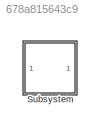
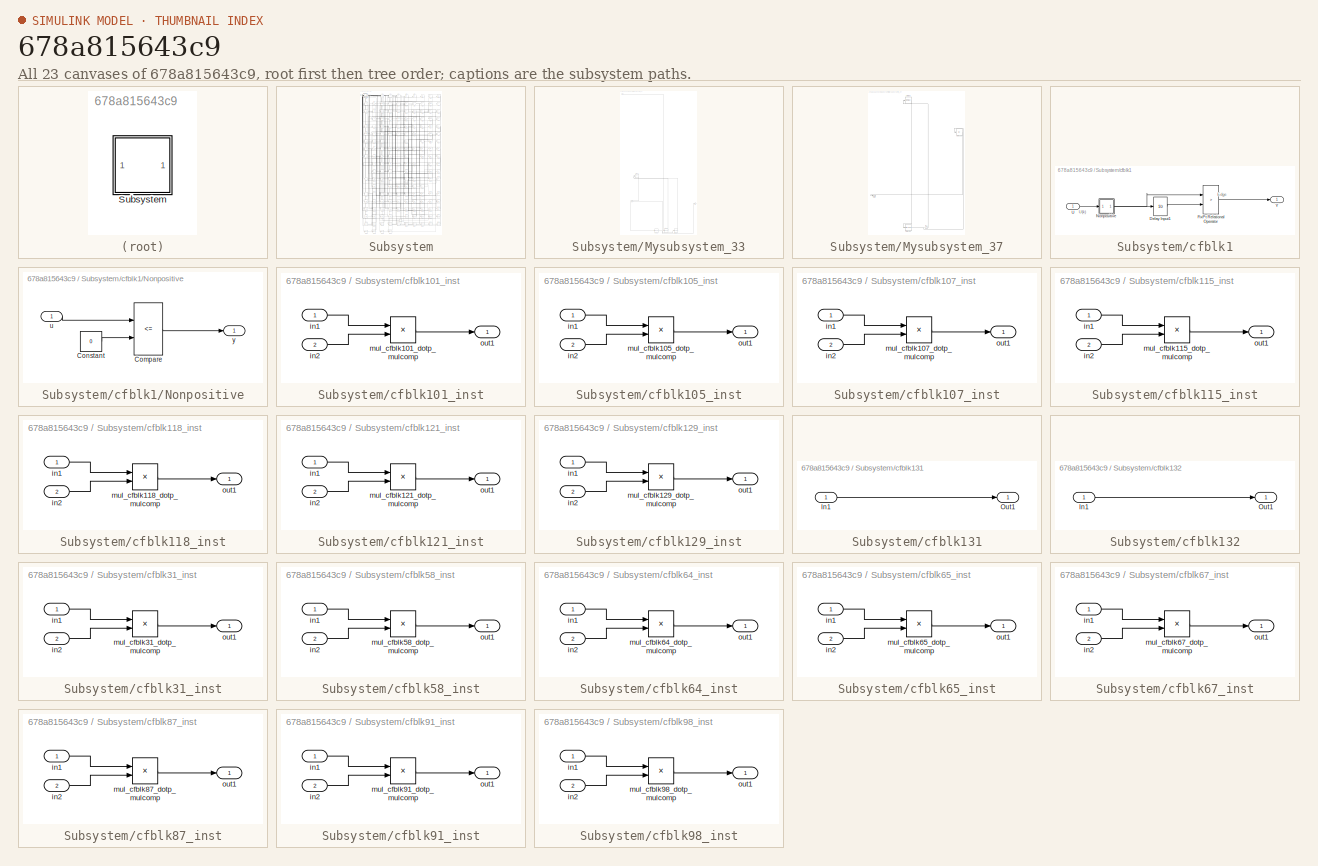
[diagram: thumbnail index - all 23 canvases of the model, root first then tree order]
MODEL slx_678a815643c9
KIND model
CONFIG AbsTol = auto
CONFIG EnableMultiTasking = off
CONFIG FixedStep = auto
CONFIG MaxStep = auto
CONFIG MinStep = auto
CONFIG RelTol = 1e-3
CONFIG SampleTimeConstraint = Unconstrained
CONFIG SolverName = VariableStepAuto
CONFIG StartTime = 0.0
CONFIG StopTime = 10.0
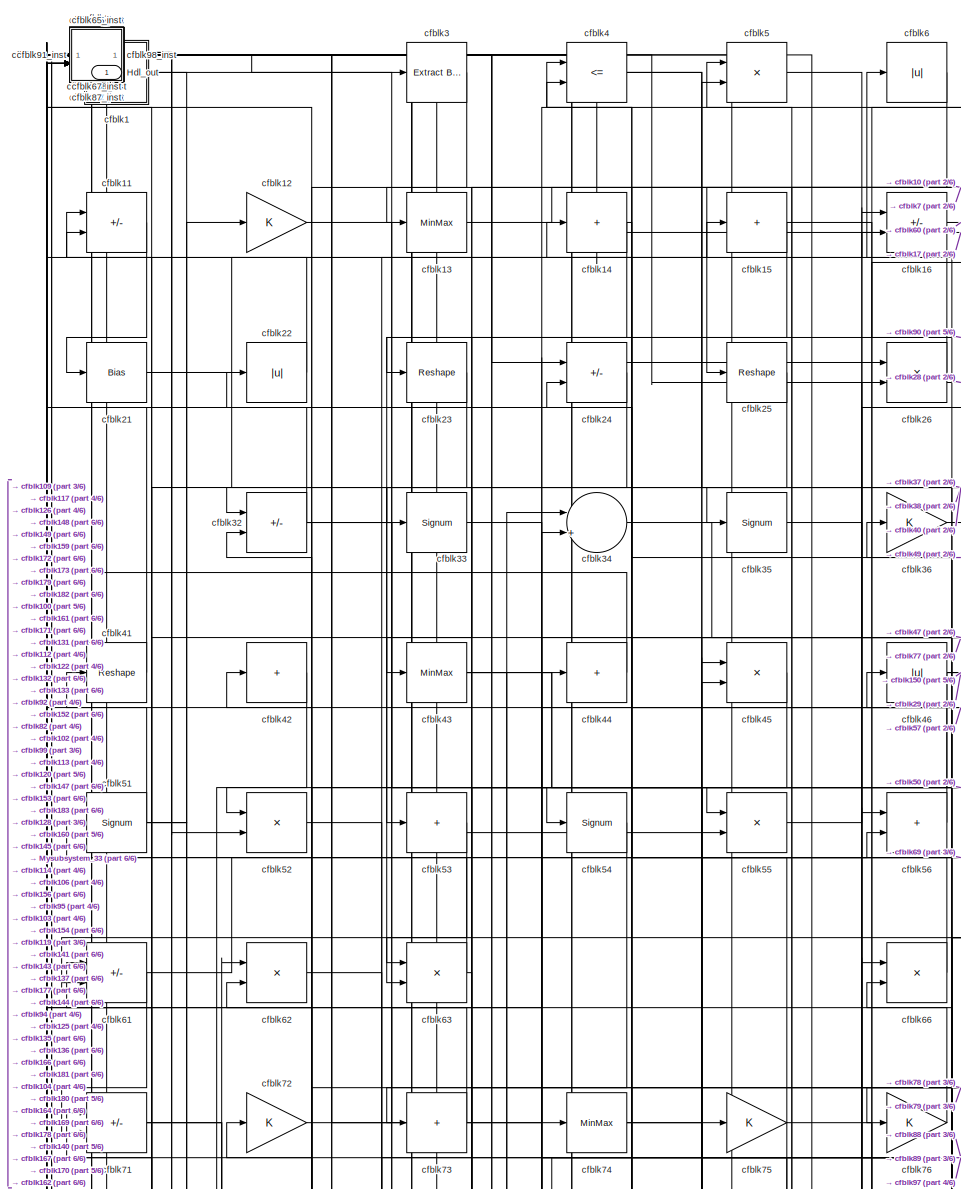
[diagram: Subsystem - part 1/6, top left region]
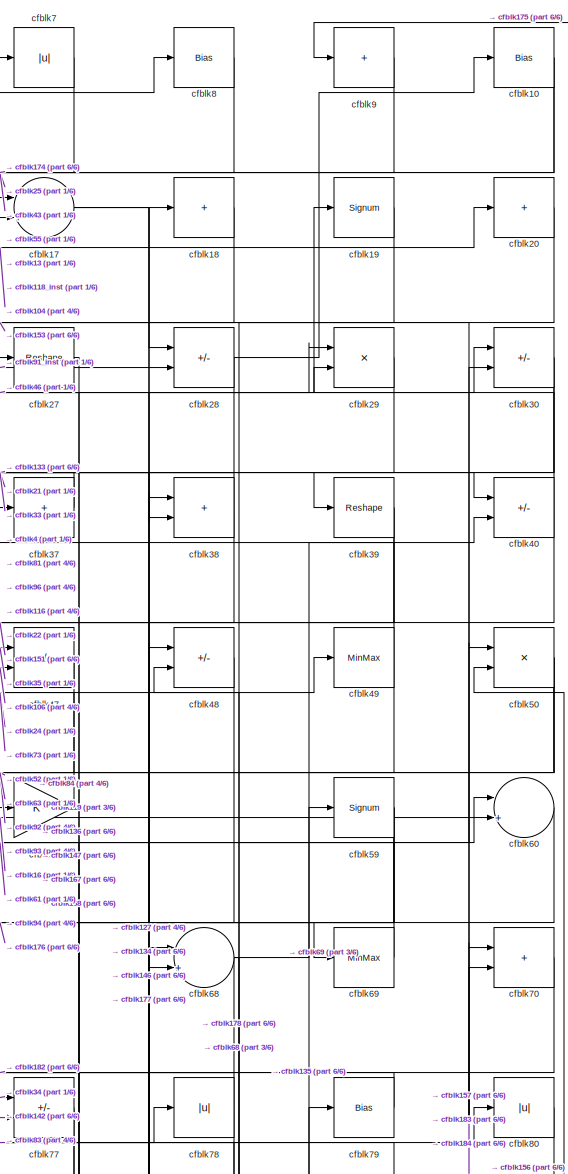
[diagram: Subsystem - part 2/6, top right region]
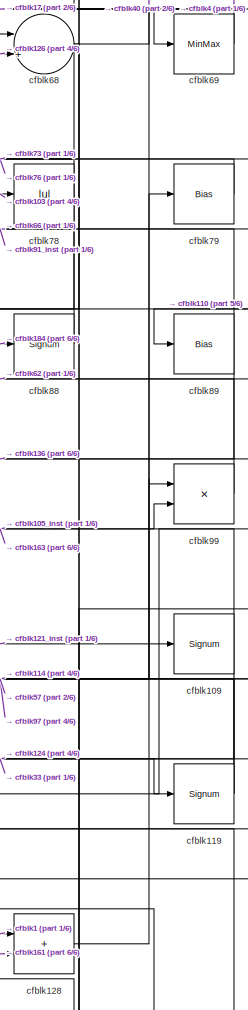
[diagram: Subsystem - part 3/6, middle right region]
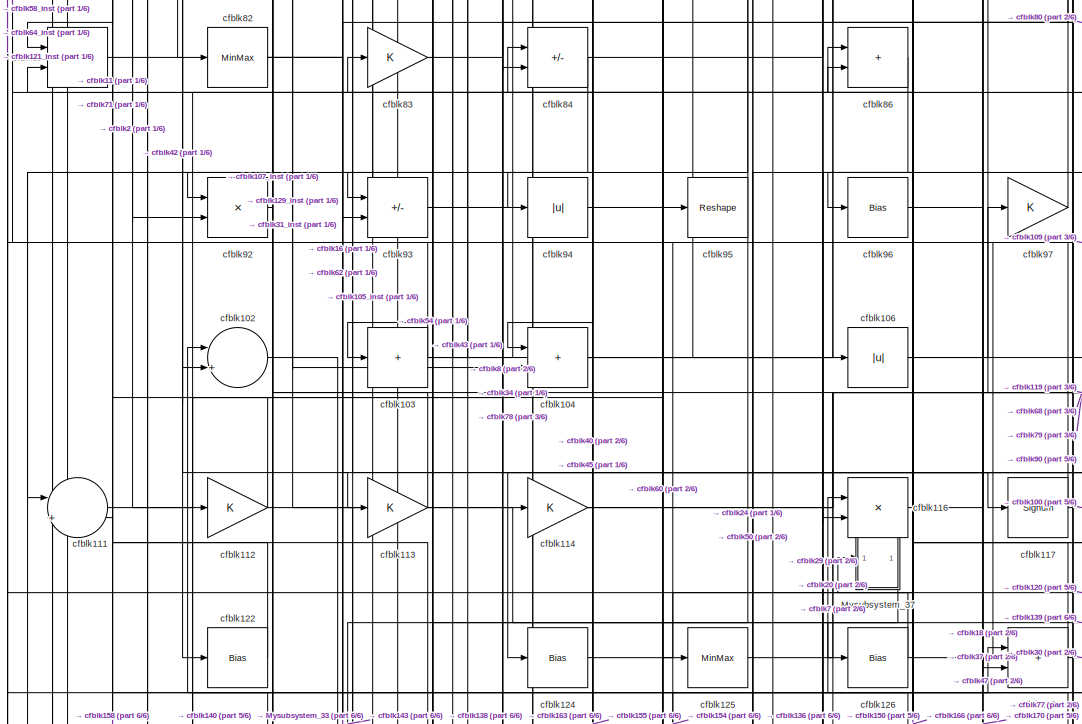
[diagram: Subsystem - part 4/6, central region]
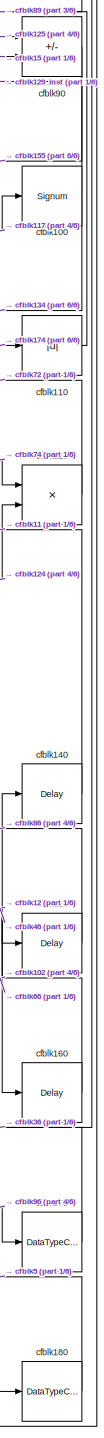
[diagram: Subsystem - part 5/6, bottom right region]
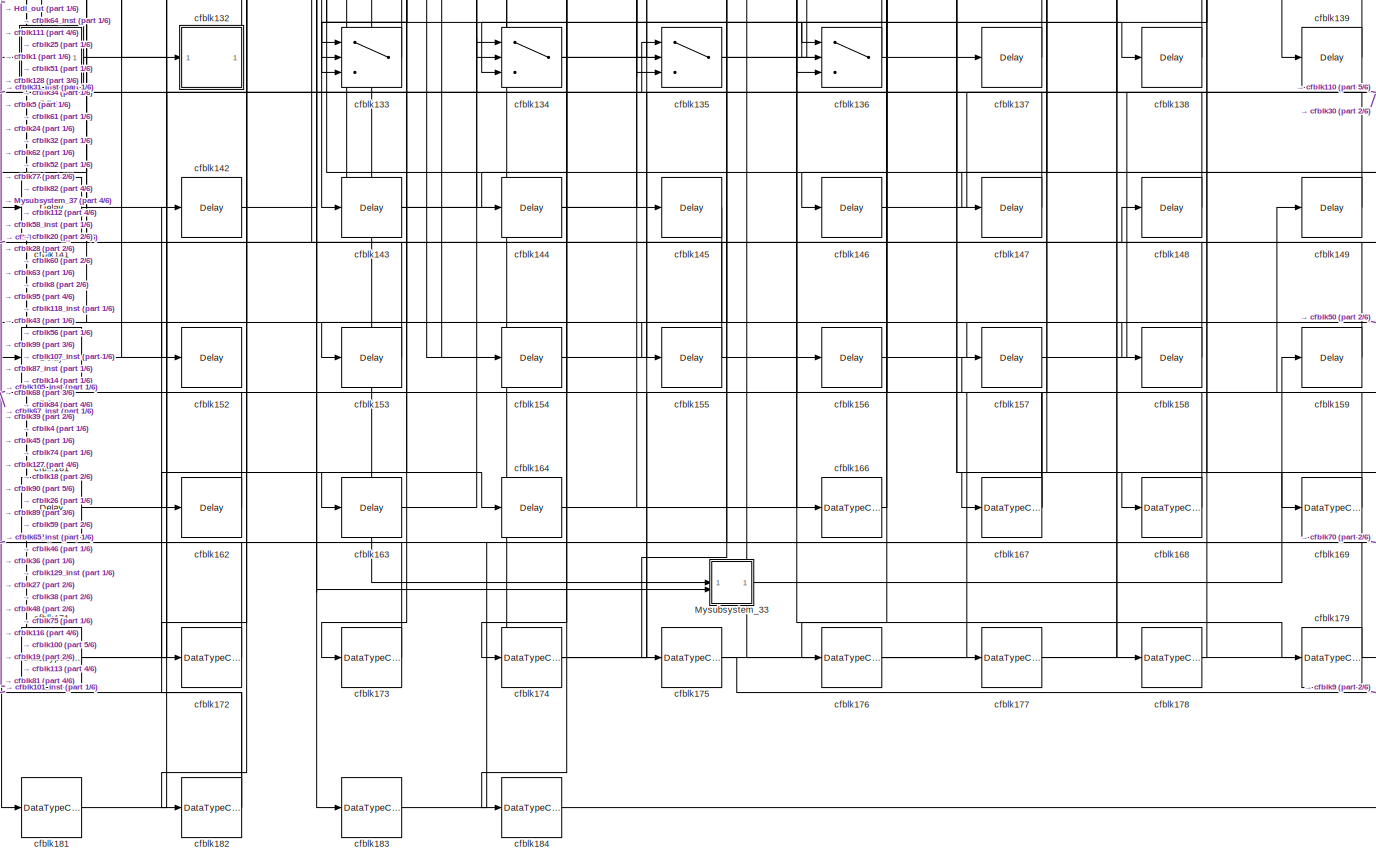
[diagram: Subsystem - part 6/6, full width, bottom band]
BLOCK [SubSystem] Subsystem
BLOCK [Outport] Subsystem/Hdl_out
  OutDataTypeStr = uint8
  SampleTime = 1
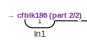
[diagram: Subsystem/Mysubsystem_33 - part 1/2, top left region]
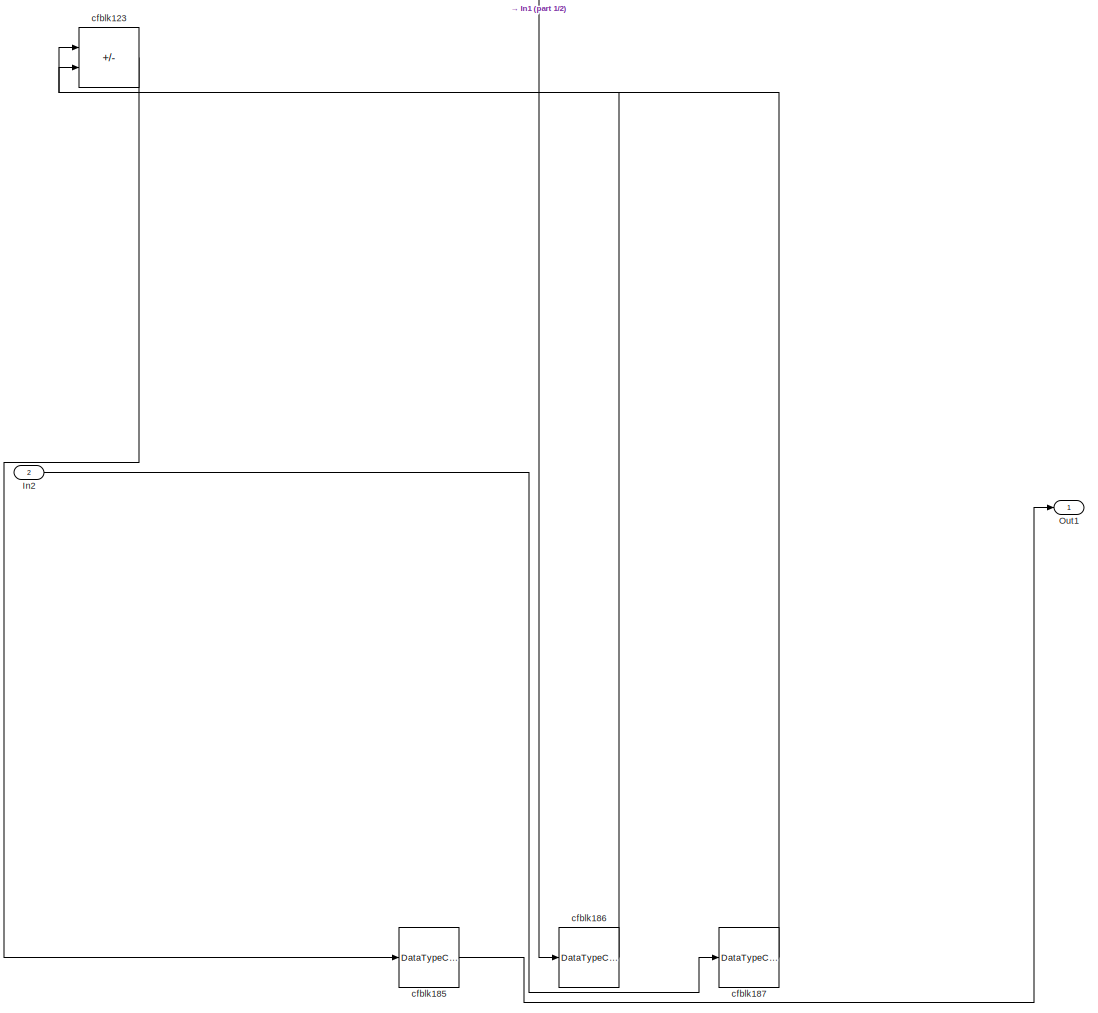
[diagram: Subsystem/Mysubsystem_33 - part 2/2, full width, bottom band]
BLOCK [SubSystem] Subsystem/Mysubsystem_33
BLOCK [Inport] Subsystem/Mysubsystem_33/In1
  OutDataTypeStr = uint8
  PortDimensions = 1
  SampleTime = 1
BLOCK [Inport] Subsystem/Mysubsystem_33/In2
  OutDataTypeStr = uint8
  Port = 2
  PortDimensions = 1
  SampleTime = 1
BLOCK [Outport] Subsystem/Mysubsystem_33/Out1
  SampleTime = 1
BLOCK [Sum] Subsystem/Mysubsystem_33/cfblk123
  IconShape = rectangular
  Inputs = +-
BLOCK [DataTypeConversion] Subsystem/Mysubsystem_33/cfblk185
  OutDataTypeStr = uint8
  RndMeth = Floor
  SaturateOnIntegerOverflow = off
BLOCK [DataTypeConversion] Subsystem/Mysubsystem_33/cfblk186
  OutDataTypeStr = uint8
  RndMeth = Floor
  SaturateOnIntegerOverflow = off
BLOCK [DataTypeConversion] Subsystem/Mysubsystem_33/cfblk187
  OutDataTypeStr = uint8
  RndMeth = Floor
  SaturateOnIntegerOverflow = off
BLOCK [SubSystem] Subsystem/Mysubsystem_37
BLOCK [Inport] Subsystem/Mysubsystem_37/In1
  OutDataTypeStr = uint8
  PortDimensions = 1
  SampleTime = 1
BLOCK [Outport] Subsystem/Mysubsystem_37/Out1
  SampleTime = 1
BLOCK [Abs] Subsystem/Mysubsystem_37/cfblk108
  SaturateOnIntegerOverflow = off
BLOCK [DataTypeConversion] Subsystem/Mysubsystem_37/cfblk165
  OutDataTypeStr = uint8
  RndMeth = Floor
  SaturateOnIntegerOverflow = off
BLOCK [MinMax] Subsystem/Mysubsystem_37/cfblk85
BLOCK [SubSystem] Subsystem/cfblk1
BLOCK [UnitDelay] Subsystem/cfblk1/Delay Input1
  Description = Store in Global RAM
  DisableCoverage = on
  HasFrameUpgradeWarning = on
  InitialCondition = vinit
  SampleTime = -1
BLOCK [RelationalOperator] Subsystem/cfblk1/FixPt Relational Operator
  InputSameDT = off
  Operator = >
  OutDataTypeStr = fixdt(0, 8)
  ZeroCross = off
BLOCK [SubSystem] Subsystem/cfblk1/Nonpositive
BLOCK [RelationalOperator] Subsystem/cfblk1/Nonpositive/Compare
  Operator = <=
  OutDataTypeStr = boolean
  ZeroCross = off
BLOCK [Constant] Subsystem/cfblk1/Nonpositive/Constant
  DisableCoverage = on
  OutDataTypeStr = Inherit: Inherit via back propagation
  PreserveConstantTs = on
  SampleTime = -1
  Value = 0
BLOCK [Inport] Subsystem/cfblk1/Nonpositive/u
  OutDataTypeStr = uint8
  SampleTime = 1
BLOCK [Outport] Subsystem/cfblk1/Nonpositive/y
  SampleTime = 1
BLOCK [Inport] Subsystem/cfblk1/U
  OutDataTypeStr = uint8
  SampleTime = 1
BLOCK [Outport] Subsystem/cfblk1/Y
  SampleTime = 1
BLOCK [Bias] Subsystem/cfblk10
  Bias = 0.0
  SaturateOnIntegerOverflow = off
BLOCK [Signum] Subsystem/cfblk100
BLOCK [SubSystem] Subsystem/cfblk101_inst
BLOCK [Inport] Subsystem/cfblk101_inst/in1
  OutDataTypeStr = uint8
  SampleTime = 1
BLOCK [Inport] Subsystem/cfblk101_inst/in2
  OutDataTypeStr = uint8
  Port = 2
  SampleTime = 1
BLOCK [Product] Subsystem/cfblk101_inst/mul_cfblk101_dotp_mulcomp
  Inputs = **
  OutDataTypeStr = uint8
  SampleTime = 1
BLOCK [Outport] Subsystem/cfblk101_inst/out1
  OutDataTypeStr = uint8
  SampleTime = 1
BLOCK [Sum] Subsystem/cfblk102
  Inputs = |++
  OutDataTypeStr = uint8
BLOCK [Sum] Subsystem/cfblk103
  IconShape = rectangular
  Inputs = +
  OutDataTypeStr = uint8
BLOCK [Sum] Subsystem/cfblk104
  IconShape = rectangular
  OutDataTypeStr = uint8
BLOCK [SubSystem] Subsystem/cfblk105_inst
BLOCK [Inport] Subsystem/cfblk105_inst/in1
  OutDataTypeStr = uint8
  SampleTime = 1
BLOCK [Inport] Subsystem/cfblk105_inst/in2
  OutDataTypeStr = uint8
  Port = 2
  SampleTime = 1
BLOCK [Product] Subsystem/cfblk105_inst/mul_cfblk105_dotp_mulcomp
  Inputs = **
  OutDataTypeStr = uint8
  SampleTime = 1
BLOCK [Outport] Subsystem/cfblk105_inst/out1
  OutDataTypeStr = uint8
  SampleTime = 1
BLOCK [Abs] Subsystem/cfblk106
  OutDataTypeStr = uint8
  SaturateOnIntegerOverflow = off
BLOCK [SubSystem] Subsystem/cfblk107_inst
BLOCK [Inport] Subsystem/cfblk107_inst/in1
  OutDataTypeStr = uint8
  SampleTime = 1
BLOCK [Inport] Subsystem/cfblk107_inst/in2
  OutDataTypeStr = uint8
  Port = 2
  SampleTime = 1
BLOCK [Product] Subsystem/cfblk107_inst/mul_cfblk107_dotp_mulcomp
  Inputs = **
  OutDataTypeStr = uint8
  SampleTime = 1
BLOCK [Outport] Subsystem/cfblk107_inst/out1
  OutDataTypeStr = uint8
  SampleTime = 1
BLOCK [Signum] Subsystem/cfblk109
BLOCK [Sum] Subsystem/cfblk11
  IconShape = rectangular
  Inputs = +-
  OutDataTypeStr = uint8
BLOCK [Abs] Subsystem/cfblk110
  OutDataTypeStr = uint8
  SaturateOnIntegerOverflow = off
BLOCK [Sum] Subsystem/cfblk111
  Inputs = |++
  OutDataTypeStr = uint8
BLOCK [Gain] Subsystem/cfblk112
  OutDataTypeStr = uint8
BLOCK [Gain] Subsystem/cfblk113
  OutDataTypeStr = uint8
BLOCK [Gain] Subsystem/cfblk114
  OutDataTypeStr = uint8
BLOCK [SubSystem] Subsystem/cfblk115_inst
BLOCK [Inport] Subsystem/cfblk115_inst/in1
  OutDataTypeStr = uint8
  SampleTime = 1
BLOCK [Inport] Subsystem/cfblk115_inst/in2
  OutDataTypeStr = uint8
  Port = 2
  SampleTime = 1
BLOCK [Product] Subsystem/cfblk115_inst/mul_cfblk115_dotp_mulcomp
  Inputs = **
  OutDataTypeStr = uint8
  SampleTime = 1
BLOCK [Outport] Subsystem/cfblk115_inst/out1
  OutDataTypeStr = uint8
  SampleTime = 1
BLOCK [Product] Subsystem/cfblk116
  Inputs = */
  OutDataTypeStr = uint8
  RndMeth = Zero
  SaturateOnIntegerOverflow = on
BLOCK [Signum] Subsystem/cfblk117
BLOCK [SubSystem] Subsystem/cfblk118_inst
BLOCK [Inport] Subsystem/cfblk118_inst/in1
  OutDataTypeStr = uint8
  SampleTime = 1
BLOCK [Inport] Subsystem/cfblk118_inst/in2
  OutDataTypeStr = uint8
  Port = 2
  SampleTime = 1
BLOCK [Product] Subsystem/cfblk118_inst/mul_cfblk118_dotp_mulcomp
  Inputs = **
  OutDataTypeStr = uint8
  SampleTime = 1
BLOCK [Outport] Subsystem/cfblk118_inst/out1
  OutDataTypeStr = uint8
  SampleTime = 1
BLOCK [Signum] Subsystem/cfblk119
BLOCK [Gain] Subsystem/cfblk12
  OutDataTypeStr = uint8
BLOCK [Product] Subsystem/cfblk120
  Inputs = */
  OutDataTypeStr = uint8
  RndMeth = Zero
  SaturateOnIntegerOverflow = on
BLOCK [SubSystem] Subsystem/cfblk121_inst
BLOCK [Inport] Subsystem/cfblk121_inst/in1
  OutDataTypeStr = uint8
  SampleTime = 1
BLOCK [Inport] Subsystem/cfblk121_inst/in2
  OutDataTypeStr = uint8
  Port = 2
  SampleTime = 1
BLOCK [Product] Subsystem/cfblk121_inst/mul_cfblk121_dotp_mulcomp
  Inputs = **
  OutDataTypeStr = uint8
  SampleTime = 1
BLOCK [Outport] Subsystem/cfblk121_inst/out1
  OutDataTypeStr = uint8
  SampleTime = 1
BLOCK [Bias] Subsystem/cfblk122
  Bias = 0.0
  SaturateOnIntegerOverflow = off
BLOCK [Bias] Subsystem/cfblk124
  Bias = 0.0
  SaturateOnIntegerOverflow = off
BLOCK [MinMax] Subsystem/cfblk125
  OutDataTypeStr = uint8
BLOCK [Bias] Subsystem/cfblk126
  Bias = 0.0
  SaturateOnIntegerOverflow = off
BLOCK [Sum] Subsystem/cfblk127
  IconShape = rectangular
  OutDataTypeStr = uint8
BLOCK [Sum] Subsystem/cfblk128
  IconShape = rectangular
  OutDataTypeStr = uint8
BLOCK [SubSystem] Subsystem/cfblk129_inst
BLOCK [Inport] Subsystem/cfblk129_inst/in1
  OutDataTypeStr = uint8
  SampleTime = 1
BLOCK [Inport] Subsystem/cfblk129_inst/in2
  OutDataTypeStr = uint8
  Port = 2
  SampleTime = 1
BLOCK [Product] Subsystem/cfblk129_inst/mul_cfblk129_dotp_mulcomp
  Inputs = **
  OutDataTypeStr = uint8
  SampleTime = 1
BLOCK [Outport] Subsystem/cfblk129_inst/out1
  OutDataTypeStr = uint8
  SampleTime = 1
BLOCK [MinMax] Subsystem/cfblk13
  OutDataTypeStr = uint8
BLOCK [SubSystem] Subsystem/cfblk131
BLOCK [Inport] Subsystem/cfblk131/In1
  OutDataTypeStr = uint8
  PortDimensions = 1
  SampleTime = 1
BLOCK [Outport] Subsystem/cfblk131/Out1
  SampleTime = 1
BLOCK [SubSystem] Subsystem/cfblk132
BLOCK [Inport] Subsystem/cfblk132/In1
  OutDataTypeStr = uint8
  PortDimensions = 1
  SampleTime = 1
BLOCK [Outport] Subsystem/cfblk132/Out1
  SampleTime = 1
BLOCK [Switch] Subsystem/cfblk133
  InputSameDT = off
  OutDataTypeStr = uint8
  SaturateOnIntegerOverflow = off
BLOCK [Switch] Subsystem/cfblk134
  InputSameDT = off
  OutDataTypeStr = uint8
  SaturateOnIntegerOverflow = off
BLOCK [Switch] Subsystem/cfblk135
  InputSameDT = off
  OutDataTypeStr = uint8
  SaturateOnIntegerOverflow = off
BLOCK [Switch] Subsystem/cfblk136
  InputSameDT = off
  OutDataTypeStr = uint8
  SaturateOnIntegerOverflow = off
BLOCK [Delay] Subsystem/cfblk137
  InputPortMap = u0
  SampleTime = 1
BLOCK [Delay] Subsystem/cfblk138
  InputPortMap = u0
  SampleTime = 1
BLOCK [Delay] Subsystem/cfblk139
  InputPortMap = u0
  SampleTime = 1
BLOCK [Sum] Subsystem/cfblk14
  IconShape = rectangular
  Inputs = +
  OutDataTypeStr = uint8
BLOCK [Delay] Subsystem/cfblk140
  InputPortMap = u0
  SampleTime = 1
BLOCK [Delay] Subsystem/cfblk141
  InputPortMap = u0
  SampleTime = 1
BLOCK [Delay] Subsystem/cfblk142
  InputPortMap = u0
  SampleTime = 1
BLOCK [Delay] Subsystem/cfblk143
  InputPortMap = u0
  SampleTime = 1
BLOCK [Delay] Subsystem/cfblk144
  InputPortMap = u0
  SampleTime = 1
BLOCK [Delay] Subsystem/cfblk145
  InputPortMap = u0
  SampleTime = 1
BLOCK [Delay] Subsystem/cfblk146
  InputPortMap = u0
  SampleTime = 1
BLOCK [Delay] Subsystem/cfblk147
  InputPortMap = u0
  SampleTime = 1
BLOCK [Delay] Subsystem/cfblk148
  InputPortMap = u0
  SampleTime = 1
BLOCK [Delay] Subsystem/cfblk149
  InputPortMap = u0
  SampleTime = 1
BLOCK [Sum] Subsystem/cfblk15
  IconShape = rectangular
  Inputs = +
  OutDataTypeStr = uint8
BLOCK [Delay] Subsystem/cfblk150
  InputPortMap = u0
  SampleTime = 1
BLOCK [Delay] Subsystem/cfblk151
  InputPortMap = u0
  SampleTime = 1
BLOCK [Delay] Subsystem/cfblk152
  InputPortMap = u0
  SampleTime = 1
BLOCK [Delay] Subsystem/cfblk153
  InputPortMap = u0
  SampleTime = 1
BLOCK [Delay] Subsystem/cfblk154
  InputPortMap = u0
  SampleTime = 1
BLOCK [Delay] Subsystem/cfblk155
  InputPortMap = u0
  SampleTime = 1
BLOCK [Delay] Subsystem/cfblk156
  InputPortMap = u0
  SampleTime = 1
BLOCK [Delay] Subsystem/cfblk157
  InputPortMap = u0
  SampleTime = 1
BLOCK [Delay] Subsystem/cfblk158
  InputPortMap = u0
  SampleTime = 1
BLOCK [Delay] Subsystem/cfblk159
  InputPortMap = u0
  SampleTime = 1
BLOCK [Sum] Subsystem/cfblk16
  IconShape = rectangular
  Inputs = +-
  OutDataTypeStr = uint8
BLOCK [Delay] Subsystem/cfblk160
  InputPortMap = u0
  SampleTime = 1
BLOCK [Delay] Subsystem/cfblk161
  InputPortMap = u0
  SampleTime = 1
BLOCK [Delay] Subsystem/cfblk162
  InputPortMap = u0
  SampleTime = 1
BLOCK [Delay] Subsystem/cfblk163
  InputPortMap = u0
  SampleTime = 1
BLOCK [Delay] Subsystem/cfblk164
  InputPortMap = u0
  SampleTime = 1
BLOCK [DataTypeConversion] Subsystem/cfblk166
  OutDataTypeStr = uint8
  RndMeth = Floor
  SaturateOnIntegerOverflow = off
BLOCK [DataTypeConversion] Subsystem/cfblk167
  OutDataTypeStr = uint8
  RndMeth = Floor
  SaturateOnIntegerOverflow = off
BLOCK [DataTypeConversion] Subsystem/cfblk168
  OutDataTypeStr = uint8
  RndMeth = Floor
  SaturateOnIntegerOverflow = off
BLOCK [DataTypeConversion] Subsystem/cfblk169
  OutDataTypeStr = uint8
  RndMeth = Floor
  SaturateOnIntegerOverflow = off
BLOCK [Sum] Subsystem/cfblk17
  Inputs = |++
  OutDataTypeStr = uint8
BLOCK [DataTypeConversion] Subsystem/cfblk170
  OutDataTypeStr = uint8
  RndMeth = Floor
  SaturateOnIntegerOverflow = off
BLOCK [DataTypeConversion] Subsystem/cfblk171
  OutDataTypeStr = uint8
  RndMeth = Floor
  SaturateOnIntegerOverflow = off
BLOCK [DataTypeConversion] Subsystem/cfblk172
  OutDataTypeStr = uint8
  RndMeth = Floor
  SaturateOnIntegerOverflow = off
BLOCK [DataTypeConversion] Subsystem/cfblk173
  OutDataTypeStr = uint8
  RndMeth = Floor
  SaturateOnIntegerOverflow = off
BLOCK [DataTypeConversion] Subsystem/cfblk174
  OutDataTypeStr = uint8
  RndMeth = Floor
  SaturateOnIntegerOverflow = off
BLOCK [DataTypeConversion] Subsystem/cfblk175
  OutDataTypeStr = uint8
  RndMeth = Floor
  SaturateOnIntegerOverflow = off
BLOCK [DataTypeConversion] Subsystem/cfblk176
  OutDataTypeStr = uint8
  RndMeth = Floor
  SaturateOnIntegerOverflow = off
BLOCK [DataTypeConversion] Subsystem/cfblk177
  OutDataTypeStr = uint8
  RndMeth = Floor
  SaturateOnIntegerOverflow = off
BLOCK [DataTypeConversion] Subsystem/cfblk178
  OutDataTypeStr = uint8
  RndMeth = Floor
  SaturateOnIntegerOverflow = off
BLOCK [DataTypeConversion] Subsystem/cfblk179
  OutDataTypeStr = uint8
  RndMeth = Floor
  SaturateOnIntegerOverflow = off
BLOCK [Sum] Subsystem/cfblk18
  IconShape = rectangular
  Inputs = +
  OutDataTypeStr = uint8
BLOCK [DataTypeConversion] Subsystem/cfblk180
  OutDataTypeStr = uint8
  RndMeth = Floor
  SaturateOnIntegerOverflow = off
BLOCK [DataTypeConversion] Subsystem/cfblk181
  OutDataTypeStr = uint8
  RndMeth = Floor
  SaturateOnIntegerOverflow = off
BLOCK [DataTypeConversion] Subsystem/cfblk182
  OutDataTypeStr = uint8
  RndMeth = Floor
  SaturateOnIntegerOverflow = off
BLOCK [DataTypeConversion] Subsystem/cfblk183
  OutDataTypeStr = uint8
  RndMeth = Floor
  SaturateOnIntegerOverflow = off
BLOCK [DataTypeConversion] Subsystem/cfblk184
  OutDataTypeStr = uint8
  RndMeth = Floor
  SaturateOnIntegerOverflow = off
BLOCK [Signum] Subsystem/cfblk19
BLOCK [Constant] Subsystem/cfblk2
  OutDataTypeStr = uint8
  SampleTime = 1
  Value = 0
BLOCK [Sum] Subsystem/cfblk20
  IconShape = rectangular
  Inputs = +
  OutDataTypeStr = uint8
BLOCK [Bias] Subsystem/cfblk21
  Bias = 0.0
  SaturateOnIntegerOverflow = off
BLOCK [Abs] Subsystem/cfblk22
  OutDataTypeStr = uint8
  SaturateOnIntegerOverflow = off
BLOCK [Reshape] Subsystem/cfblk23
BLOCK [Sum] Subsystem/cfblk24
  IconShape = rectangular
  Inputs = +-
  OutDataTypeStr = uint8
BLOCK [Reshape] Subsystem/cfblk25
BLOCK [Product] Subsystem/cfblk26
  Inputs = */
  OutDataTypeStr = uint8
  RndMeth = Zero
  SaturateOnIntegerOverflow = on
BLOCK [Reshape] Subsystem/cfblk27
BLOCK [Sum] Subsystem/cfblk28
  IconShape = rectangular
  Inputs = +-
  OutDataTypeStr = uint8
BLOCK [Product] Subsystem/cfblk29
  Inputs = */
  OutDataTypeStr = uint8
  RndMeth = Zero
  SaturateOnIntegerOverflow = on
BLOCK [Reference] Subsystem/cfblk3  REF=simulink/Logic and Bit
Operations/Extract Bits
  LibrarySourceBlock = hdlsllib/Logic and Bit\nOperations/Extract Bits
  SourceBlock = simulink/Logic and Bit\nOperations/Extract Bits
  SourceType = Extract Bits
BLOCK [Sum] Subsystem/cfblk30
  IconShape = rectangular
  Inputs = +-
  OutDataTypeStr = uint8
BLOCK [SubSystem] Subsystem/cfblk31_inst
BLOCK [Inport] Subsystem/cfblk31_inst/in1
  OutDataTypeStr = uint8
  SampleTime = 1
BLOCK [Inport] Subsystem/cfblk31_inst/in2
  OutDataTypeStr = uint8
  Port = 2
  SampleTime = 1
BLOCK [Product] Subsystem/cfblk31_inst/mul_cfblk31_dotp_mulcomp
  Inputs = **
  OutDataTypeStr = uint8
  SampleTime = 1
BLOCK [Outport] Subsystem/cfblk31_inst/out1
  OutDataTypeStr = uint8
  SampleTime = 1
BLOCK [Sum] Subsystem/cfblk32
  IconShape = rectangular
  Inputs = +-
  OutDataTypeStr = uint8
BLOCK [Signum] Subsystem/cfblk33
BLOCK [Sum] Subsystem/cfblk34
  Inputs = |++
  OutDataTypeStr = uint8
BLOCK [Signum] Subsystem/cfblk35
BLOCK [Gain] Subsystem/cfblk36
  OutDataTypeStr = uint8
BLOCK [Sum] Subsystem/cfblk37
  IconShape = rectangular
  Inputs = +
  OutDataTypeStr = uint8
BLOCK [Sum] Subsystem/cfblk38
  IconShape = rectangular
  OutDataTypeStr = uint8
BLOCK [Reshape] Subsystem/cfblk39
BLOCK [RelationalOperator] Subsystem/cfblk4
  InputSameDT = off
  Operator = <=
  OutDataTypeStr = boolean
BLOCK [Sum] Subsystem/cfblk40
  IconShape = rectangular
  Inputs = +-
  OutDataTypeStr = uint8
BLOCK [Reshape] Subsystem/cfblk41
BLOCK [Sum] Subsystem/cfblk42
  IconShape = rectangular
  Inputs = +
  OutDataTypeStr = uint8
BLOCK [MinMax] Subsystem/cfblk43
  OutDataTypeStr = uint8
BLOCK [Sum] Subsystem/cfblk44
  IconShape = rectangular
  Inputs = +
  OutDataTypeStr = uint8
BLOCK [Product] Subsystem/cfblk45
  Inputs = */
  OutDataTypeStr = uint8
  RndMeth = Zero
  SaturateOnIntegerOverflow = on
BLOCK [Abs] Subsystem/cfblk46
  OutDataTypeStr = uint8
  SaturateOnIntegerOverflow = off
BLOCK [Sum] Subsystem/cfblk47
  IconShape = rectangular
  Inputs = +-
  OutDataTypeStr = uint8
BLOCK [Sum] Subsystem/cfblk48
  IconShape = rectangular
  Inputs = +-
  OutDataTypeStr = uint8
BLOCK [MinMax] Subsystem/cfblk49
  OutDataTypeStr = uint8
BLOCK [Product] Subsystem/cfblk5
  Inputs = */
  OutDataTypeStr = uint8
  RndMeth = Zero
  SaturateOnIntegerOverflow = on
BLOCK [Product] Subsystem/cfblk50
  Inputs = */
  OutDataTypeStr = uint8
  RndMeth = Zero
  SaturateOnIntegerOverflow = on
BLOCK [Signum] Subsystem/cfblk51
BLOCK [Product] Subsystem/cfblk52
  Inputs = */
  OutDataTypeStr = uint8
  RndMeth = Zero
  SaturateOnIntegerOverflow = on
BLOCK [Sum] Subsystem/cfblk53
  IconShape = rectangular
  Inputs = +
  OutDataTypeStr = uint8
BLOCK [Signum] Subsystem/cfblk54
BLOCK [Product] Subsystem/cfblk55
  Inputs = */
  OutDataTypeStr = uint8
  RndMeth = Zero
  SaturateOnIntegerOverflow = on
BLOCK [Sum] Subsystem/cfblk56
  IconShape = rectangular
  OutDataTypeStr = uint8
BLOCK [Gain] Subsystem/cfblk57
  OutDataTypeStr = uint8
BLOCK [SubSystem] Subsystem/cfblk58_inst
BLOCK [Inport] Subsystem/cfblk58_inst/in1
  OutDataTypeStr = uint8
  SampleTime = 1
BLOCK [Inport] Subsystem/cfblk58_inst/in2
  OutDataTypeStr = uint8
  Port = 2
  SampleTime = 1
BLOCK [Product] Subsystem/cfblk58_inst/mul_cfblk58_dotp_mulcomp
  Inputs = **
  OutDataTypeStr = uint8
  SampleTime = 1
BLOCK [Outport] Subsystem/cfblk58_inst/out1
  OutDataTypeStr = uint8
  SampleTime = 1
BLOCK [Signum] Subsystem/cfblk59
BLOCK [Abs] Subsystem/cfblk6
  OutDataTypeStr = uint8
  SaturateOnIntegerOverflow = off
BLOCK [Sum] Subsystem/cfblk60
  Inputs = |++
  OutDataTypeStr = uint8
BLOCK [Sum] Subsystem/cfblk61
  IconShape = rectangular
  Inputs = +-
  OutDataTypeStr = uint8
BLOCK [Product] Subsystem/cfblk62
  Inputs = */
  OutDataTypeStr = uint8
  RndMeth = Zero
  SaturateOnIntegerOverflow = on
BLOCK [Product] Subsystem/cfblk63
  Inputs = */
  OutDataTypeStr = uint8
  RndMeth = Zero
  SaturateOnIntegerOverflow = on
BLOCK [SubSystem] Subsystem/cfblk64_inst
BLOCK [Inport] Subsystem/cfblk64_inst/in1
  OutDataTypeStr = uint8
  SampleTime = 1
BLOCK [Inport] Subsystem/cfblk64_inst/in2
  OutDataTypeStr = uint8
  Port = 2
  SampleTime = 1
BLOCK [Product] Subsystem/cfblk64_inst/mul_cfblk64_dotp_mulcomp
  Inputs = **
  OutDataTypeStr = uint8
  SampleTime = 1
BLOCK [Outport] Subsystem/cfblk64_inst/out1
  OutDataTypeStr = uint8
  SampleTime = 1
BLOCK [SubSystem] Subsystem/cfblk65_inst
BLOCK [Inport] Subsystem/cfblk65_inst/in1
  OutDataTypeStr = uint8
  SampleTime = 1
BLOCK [Inport] Subsystem/cfblk65_inst/in2
  OutDataTypeStr = uint8
  Port = 2
  SampleTime = 1
BLOCK [Product] Subsystem/cfblk65_inst/mul_cfblk65_dotp_mulcomp
  Inputs = **
  OutDataTypeStr = uint8
  SampleTime = 1
BLOCK [Outport] Subsystem/cfblk65_inst/out1
  OutDataTypeStr = uint8
  SampleTime = 1
BLOCK [Product] Subsystem/cfblk66
  Inputs = */
  OutDataTypeStr = uint8
  RndMeth = Zero
  SaturateOnIntegerOverflow = on
BLOCK [SubSystem] Subsystem/cfblk67_inst
BLOCK [Inport] Subsystem/cfblk67_inst/in1
  OutDataTypeStr = uint8
  SampleTime = 1
BLOCK [Inport] Subsystem/cfblk67_inst/in2
  OutDataTypeStr = uint8
  Port = 2
  SampleTime = 1
BLOCK [Product] Subsystem/cfblk67_inst/mul_cfblk67_dotp_mulcomp
  Inputs = **
  OutDataTypeStr = uint8
  SampleTime = 1
BLOCK [Outport] Subsystem/cfblk67_inst/out1
  OutDataTypeStr = uint8
  SampleTime = 1
BLOCK [Sum] Subsystem/cfblk68
  Inputs = |++
  OutDataTypeStr = uint8
BLOCK [MinMax] Subsystem/cfblk69
  OutDataTypeStr = uint8
BLOCK [Abs] Subsystem/cfblk7
  OutDataTypeStr = uint8
  SaturateOnIntegerOverflow = off
BLOCK [Sum] Subsystem/cfblk70
  IconShape = rectangular
  OutDataTypeStr = uint8
BLOCK [Sum] Subsystem/cfblk71
  IconShape = rectangular
  Inputs = +-
  OutDataTypeStr = uint8
BLOCK [Gain] Subsystem/cfblk72
  OutDataTypeStr = uint8
BLOCK [Sum] Subsystem/cfblk73
  IconShape = rectangular
  Inputs = +
  OutDataTypeStr = uint8
BLOCK [MinMax] Subsystem/cfblk74
  OutDataTypeStr = uint8
BLOCK [Gain] Subsystem/cfblk75
  OutDataTypeStr = uint8
BLOCK [Gain] Subsystem/cfblk76
  OutDataTypeStr = uint8
BLOCK [Sum] Subsystem/cfblk77
  IconShape = rectangular
  Inputs = +-
  OutDataTypeStr = uint8
BLOCK [Abs] Subsystem/cfblk78
  OutDataTypeStr = uint8
  SaturateOnIntegerOverflow = off
BLOCK [Bias] Subsystem/cfblk79
  Bias = 0.0
  SaturateOnIntegerOverflow = off
BLOCK [Bias] Subsystem/cfblk8
  Bias = 0.0
  SaturateOnIntegerOverflow = off
BLOCK [Abs] Subsystem/cfblk80
  OutDataTypeStr = uint8
  SaturateOnIntegerOverflow = off
BLOCK [Sum] Subsystem/cfblk81
  IconShape = rectangular
  OutDataTypeStr = uint8
BLOCK [MinMax] Subsystem/cfblk82
  OutDataTypeStr = uint8
BLOCK [Gain] Subsystem/cfblk83
  OutDataTypeStr = uint8
BLOCK [Sum] Subsystem/cfblk84
  IconShape = rectangular
  Inputs = +-
  OutDataTypeStr = uint8
BLOCK [Sum] Subsystem/cfblk86
  IconShape = rectangular
  OutDataTypeStr = uint8
BLOCK [SubSystem] Subsystem/cfblk87_inst
BLOCK [Inport] Subsystem/cfblk87_inst/in1
  OutDataTypeStr = uint8
  SampleTime = 1
BLOCK [Inport] Subsystem/cfblk87_inst/in2
  OutDataTypeStr = uint8
  Port = 2
  SampleTime = 1
BLOCK [Product] Subsystem/cfblk87_inst/mul_cfblk87_dotp_mulcomp
  Inputs = **
  OutDataTypeStr = uint8
  SampleTime = 1
BLOCK [Outport] Subsystem/cfblk87_inst/out1
  OutDataTypeStr = uint8
  SampleTime = 1
BLOCK [Signum] Subsystem/cfblk88
BLOCK [Bias] Subsystem/cfblk89
  Bias = 0.0
  SaturateOnIntegerOverflow = off
BLOCK [Sum] Subsystem/cfblk9
  IconShape = rectangular
  Inputs = +
  OutDataTypeStr = uint8
BLOCK [Sum] Subsystem/cfblk90
  IconShape = rectangular
  Inputs = +-
  OutDataTypeStr = uint8
BLOCK [SubSystem] Subsystem/cfblk91_inst
BLOCK [Inport] Subsystem/cfblk91_inst/in1
  OutDataTypeStr = uint8
  SampleTime = 1
BLOCK [Inport] Subsystem/cfblk91_inst/in2
  OutDataTypeStr = uint8
  Port = 2
  SampleTime = 1
BLOCK [Product] Subsystem/cfblk91_inst/mul_cfblk91_dotp_mulcomp
  Inputs = **
  OutDataTypeStr = uint8
  SampleTime = 1
BLOCK [Outport] Subsystem/cfblk91_inst/out1
  OutDataTypeStr = uint8
  SampleTime = 1
BLOCK [Product] Subsystem/cfblk92
  Inputs = */
  OutDataTypeStr = uint8
  RndMeth = Zero
  SaturateOnIntegerOverflow = on
BLOCK [Sum] Subsystem/cfblk93
  IconShape = rectangular
  Inputs = +-
  OutDataTypeStr = uint8
BLOCK [Abs] Subsystem/cfblk94
  OutDataTypeStr = uint8
  SaturateOnIntegerOverflow = off
BLOCK [Reshape] Subsystem/cfblk95
BLOCK [Bias] Subsystem/cfblk96
  Bias = 0.0
  SaturateOnIntegerOverflow = off
BLOCK [Gain] Subsystem/cfblk97
  OutDataTypeStr = uint8
BLOCK [SubSystem] Subsystem/cfblk98_inst
BLOCK [Inport] Subsystem/cfblk98_inst/in1
  OutDataTypeStr = uint8
  SampleTime = 1
BLOCK [Inport] Subsystem/cfblk98_inst/in2
  OutDataTypeStr = uint8
  Port = 2
  SampleTime = 1
BLOCK [Product] Subsystem/cfblk98_inst/mul_cfblk98_dotp_mulcomp
  Inputs = **
  OutDataTypeStr = uint8
  SampleTime = 1
BLOCK [Outport] Subsystem/cfblk98_inst/out1
  OutDataTypeStr = uint8
  SampleTime = 1
BLOCK [Product] Subsystem/cfblk99
  Inputs = */
  OutDataTypeStr = uint8
  RndMeth = Zero
  SaturateOnIntegerOverflow = on
ANNOTATION Subsystem/cfblk1: Edge
ANNOTATION Subsystem/cfblk1: U(k)
LINE Subsystem/Mysubsystem_33/In1:1 -> Subsystem/Mysubsystem_33/cfblk186:1
LINE Subsystem/Mysubsystem_33/In2:1 -> Subsystem/Mysubsystem_33/cfblk187:1
LINE Subsystem/Mysubsystem_33/cfblk123:1 -> Subsystem/Mysubsystem_33/cfblk185:1
LINE Subsystem/Mysubsystem_33/cfblk185:1 -> Subsystem/Mysubsystem_33/Out1:1
LINE Subsystem/Mysubsystem_33/cfblk186:1 -> Subsystem/Mysubsystem_33/cfblk123:1
LINE Subsystem/Mysubsystem_33/cfblk187:1 -> Subsystem/Mysubsystem_33/cfblk123:2
LINE Subsystem/Mysubsystem_33:1 -> Subsystem/cfblk159:1
LINE Subsystem/Mysubsystem_37/In1:1 -> Subsystem/Mysubsystem_37/cfblk85:1
LINE Subsystem/Mysubsystem_37/cfblk108:1 -> Subsystem/Mysubsystem_37/Out1:1
LINE Subsystem/Mysubsystem_37/cfblk165:1 -> Subsystem/Mysubsystem_37/cfblk108:1
LINE Subsystem/Mysubsystem_37/cfblk85:1 -> Subsystem/Mysubsystem_37/cfblk165:1
LINE Subsystem/Mysubsystem_37:1 -> Subsystem/cfblk143:1
NET Subsystem/cfblk100:1 -> Subsystem/cfblk129_inst:1, Subsystem/cfblk134:3
LINE Subsystem/cfblk101_inst/in1:1 -> Subsystem/cfblk101_inst/mul_cfblk101_dotp_mulcomp:1
LINE Subsystem/cfblk101_inst/in2:1 -> Subsystem/cfblk101_inst/mul_cfblk101_dotp_mulcomp:2
LINE Subsystem/cfblk101_inst/mul_cfblk101_dotp_mulcomp:1 -> Subsystem/cfblk101_inst/out1:1
LINE Subsystem/cfblk101_inst:1 -> Subsystem/cfblk118_inst:1
LINE Subsystem/cfblk102:1 -> Subsystem/cfblk140:1
NET Subsystem/cfblk103:1 -> Subsystem/cfblk34:1, Subsystem/cfblk58_inst:2, Subsystem/cfblk78:1
NET Subsystem/cfblk104:1 -> Subsystem/cfblk20:1, Subsystem/cfblk7:1
LINE Subsystem/cfblk105_inst/in1:1 -> Subsystem/cfblk105_inst/mul_cfblk105_dotp_mulcomp:1
LINE Subsystem/cfblk105_inst/in2:1 -> Subsystem/cfblk105_inst/mul_cfblk105_dotp_mulcomp:2
LINE Subsystem/cfblk105_inst/mul_cfblk105_dotp_mulcomp:1 -> Subsystem/cfblk105_inst/out1:1
NET Subsystem/cfblk105_inst:1 -> Subsystem/cfblk106:1, Subsystem/cfblk55:2, Subsystem/cfblk95:1
LINE Subsystem/cfblk106:1 -> Subsystem/cfblk47:2
LINE Subsystem/cfblk107_inst/in1:1 -> Subsystem/cfblk107_inst/mul_cfblk107_dotp_mulcomp:1
LINE Subsystem/cfblk107_inst/in2:1 -> Subsystem/cfblk107_inst/mul_cfblk107_dotp_mulcomp:2
LINE Subsystem/cfblk107_inst/mul_cfblk107_dotp_mulcomp:1 -> Subsystem/cfblk107_inst/out1:1
LINE Subsystem/cfblk107_inst:1 -> Subsystem/cfblk137:1
NET Subsystem/cfblk109:1 -> Subsystem/cfblk105_inst:2, Subsystem/cfblk124:1
NET Subsystem/cfblk10:1 -> Subsystem/cfblk25:1, Subsystem/cfblk55:1
LINE Subsystem/cfblk110:1 -> Subsystem/cfblk89:1
LINE Subsystem/cfblk111:1 -> Subsystem/cfblk86:1
NET Subsystem/cfblk112:1 -> Subsystem/cfblk11:1, Subsystem/cfblk138:1
NET Subsystem/cfblk113:1 -> Subsystem/cfblk107_inst:2, Subsystem/cfblk139:1
NET Subsystem/cfblk114:1 -> Subsystem/cfblk68:1, Subsystem/cfblk79:1
LINE Subsystem/cfblk115_inst/in1:1 -> Subsystem/cfblk115_inst/mul_cfblk115_dotp_mulcomp:1
LINE Subsystem/cfblk115_inst/in2:1 -> Subsystem/cfblk115_inst/mul_cfblk115_dotp_mulcomp:2
LINE Subsystem/cfblk115_inst/mul_cfblk115_dotp_mulcomp:1 -> Subsystem/cfblk115_inst/out1:1
NET Subsystem/cfblk115_inst:1 -> Subsystem/cfblk26:1, Subsystem/cfblk91_inst:2
LINE Subsystem/cfblk116:1 -> Subsystem/cfblk37:1
NET Subsystem/cfblk117:1 -> Subsystem/cfblk100:1, Subsystem/cfblk121_inst:2
LINE Subsystem/cfblk118_inst/in1:1 -> Subsystem/cfblk118_inst/mul_cfblk118_dotp_mulcomp:1
LINE Subsystem/cfblk118_inst/in2:1 -> Subsystem/cfblk118_inst/mul_cfblk118_dotp_mulcomp:2
LINE Subsystem/cfblk118_inst/mul_cfblk118_dotp_mulcomp:1 -> Subsystem/cfblk118_inst/out1:1
NET Subsystem/cfblk118_inst:1 -> Subsystem/cfblk156:1, Subsystem/cfblk17:2
NET Subsystem/cfblk119:1 -> Subsystem/cfblk57:1, Subsystem/cfblk97:1
LINE Subsystem/cfblk11:1 -> Subsystem/cfblk21:1
LINE Subsystem/cfblk120:1 -> Subsystem/cfblk72:1
LINE Subsystem/cfblk121_inst/in1:1 -> Subsystem/cfblk121_inst/mul_cfblk121_dotp_mulcomp:1
LINE Subsystem/cfblk121_inst/in2:1 -> Subsystem/cfblk121_inst/mul_cfblk121_dotp_mulcomp:2
LINE Subsystem/cfblk121_inst/mul_cfblk121_dotp_mulcomp:1 -> Subsystem/cfblk121_inst/out1:1
LINE Subsystem/cfblk121_inst:1 -> Subsystem/cfblk109:1
LINE Subsystem/cfblk122:1 -> Subsystem/cfblk71:1
LINE Subsystem/cfblk124:1 -> Subsystem/cfblk120:2
LINE Subsystem/cfblk125:1 -> Subsystem/cfblk90:1
NET Subsystem/cfblk126:1 -> Subsystem/cfblk64_inst:1, Subsystem/cfblk68:2
NET Subsystem/cfblk127:1 -> Subsystem/cfblk30:1, Subsystem/cfblk83:1
LINE Subsystem/cfblk128:1 -> Subsystem/cfblk99:1
LINE Subsystem/cfblk129_inst/in1:1 -> Subsystem/cfblk129_inst/mul_cfblk129_dotp_mulcomp:1
LINE Subsystem/cfblk129_inst/in2:1 -> Subsystem/cfblk129_inst/mul_cfblk129_dotp_mulcomp:2
LINE Subsystem/cfblk129_inst/mul_cfblk129_dotp_mulcomp:1 -> Subsystem/cfblk129_inst/out1:1
NET Subsystem/cfblk129_inst:1 -> Subsystem/cfblk104:2, Subsystem/cfblk180:1
LINE Subsystem/cfblk12:1 -> Subsystem/cfblk160:1
LINE Subsystem/cfblk131/In1:1 -> Subsystem/cfblk131/Out1:1
NET Subsystem/cfblk131:1 -> Subsystem/Hdl_out:1, Subsystem/cfblk164:1
LINE Subsystem/cfblk132/In1:1 -> Subsystem/cfblk132/Out1:1
LINE Subsystem/cfblk132:1 -> Subsystem/cfblk61:1
LINE Subsystem/cfblk133:1 -> Subsystem/cfblk107_inst:1
LINE Subsystem/cfblk134:1 -> Subsystem/cfblk18:1
LINE Subsystem/cfblk135:1 -> Subsystem/cfblk59:1
LINE Subsystem/cfblk136:1 -> Subsystem/cfblk102:1
LINE Subsystem/cfblk137:1 -> Subsystem/cfblk129_inst:2
LINE Subsystem/cfblk138:1 -> Subsystem/cfblk116:1
LINE Subsystem/cfblk139:1 -> Subsystem/cfblk81:2
LINE Subsystem/cfblk13:1 -> Subsystem/cfblk17:1
LINE Subsystem/cfblk140:1 -> Subsystem/cfblk11:2
LINE Subsystem/cfblk141:1 -> Subsystem/cfblk34:2
LINE Subsystem/cfblk142:1 -> Subsystem/cfblk77:2
LINE Subsystem/cfblk143:1 -> Subsystem/cfblk56:2
LINE Subsystem/cfblk144:1 -> Subsystem/cfblk45:2
LINE Subsystem/cfblk145:1 -> Subsystem/cfblk181:1
LINE Subsystem/cfblk146:1 -> Subsystem/cfblk38:1
LINE Subsystem/cfblk147:1 -> Subsystem/cfblk62:2
LINE Subsystem/cfblk148:1 -> Subsystem/cfblk118_inst:2
LINE Subsystem/cfblk149:1 -> Subsystem/cfblk31_inst:2
NET Subsystem/cfblk14:1 -> Subsystem/cfblk144:1, Subsystem/cfblk63:2
LINE Subsystem/cfblk150:1 -> Subsystem/cfblk86:2
LINE Subsystem/cfblk151:1 -> Subsystem/cfblk134:1
LINE Subsystem/cfblk152:1 -> Subsystem/cfblk1:1
LINE Subsystem/cfblk153:1 -> Subsystem/cfblk32:2
LINE Subsystem/cfblk154:1 -> Subsystem/cfblk127:1
LINE Subsystem/cfblk155:1 -> Subsystem/cfblk84:1
LINE Subsystem/cfblk156:1 -> Subsystem/cfblk50:2
LINE Subsystem/cfblk157:1 -> Subsystem/cfblk30:2
LINE Subsystem/cfblk158:1 -> Subsystem/cfblk111:2
LINE Subsystem/cfblk159:1 -> Subsystem/cfblk115_inst:2
NET Subsystem/cfblk15:1 -> Subsystem/cfblk23:1, Subsystem/cfblk90:2
LINE Subsystem/cfblk160:1 -> Subsystem/cfblk66:2
LINE Subsystem/cfblk161:1 -> Subsystem/cfblk128:2
LINE Subsystem/cfblk162:1 -> Subsystem/cfblk105_inst:1
LINE Subsystem/cfblk163:1 -> Subsystem/cfblk99:2
LINE Subsystem/cfblk164:1 -> Subsystem/cfblk26:2
LINE Subsystem/cfblk166:1 -> Subsystem/Mysubsystem_37:1
NET Subsystem/cfblk167:1 -> Subsystem/cfblk14:1, Subsystem/cfblk46:1, Subsystem/cfblk67_inst:2
LINE Subsystem/cfblk168:1 -> Subsystem/cfblk27:1
LINE Subsystem/cfblk169:1 -> Subsystem/cfblk56:1
LINE Subsystem/cfblk16:1 -> Subsystem/cfblk60:2
LINE Subsystem/cfblk170:1 -> Subsystem/cfblk36:1
NET Subsystem/cfblk171:1 -> Subsystem/cfblk135:1, Subsystem/cfblk148:1
LINE Subsystem/cfblk172:1 -> Subsystem/cfblk65_inst:1
LINE Subsystem/cfblk173:1 -> Subsystem/cfblk65_inst:2
NET Subsystem/cfblk174:1 -> Subsystem/cfblk110:1, Subsystem/cfblk157:1
LINE Subsystem/cfblk175:1 -> Subsystem/cfblk9:1
LINE Subsystem/cfblk176:1 -> Subsystem/cfblk149:1
LINE Subsystem/cfblk177:1 -> Subsystem/cfblk48:1
LINE Subsystem/cfblk178:1 -> Subsystem/cfblk48:2
LINE Subsystem/cfblk179:1 -> Subsystem/cfblk115_inst:1
NET Subsystem/cfblk17:1 -> Subsystem/cfblk28:1, Subsystem/cfblk69:1
LINE Subsystem/cfblk180:1 -> Subsystem/cfblk5:1
LINE Subsystem/cfblk181:1 -> Subsystem/cfblk5:2
NET Subsystem/cfblk182:1 -> Subsystem/cfblk101_inst:1, Subsystem/cfblk142:1
LINE Subsystem/cfblk183:1 -> Subsystem/cfblk70:1
LINE Subsystem/cfblk184:1 -> Subsystem/cfblk70:2
LINE Subsystem/cfblk18:1 -> Subsystem/cfblk127:2
LINE Subsystem/cfblk19:1 -> Subsystem/cfblk168:1
LINE Subsystem/cfblk1:1 -> Subsystem/cfblk128:1
LINE Subsystem/cfblk20:1 -> Subsystem/cfblk153:1
NET Subsystem/cfblk21:1 -> Subsystem/cfblk15:1, Subsystem/cfblk38:2
LINE Subsystem/cfblk22:1 -> Subsystem/cfblk67_inst:1
LINE Subsystem/cfblk23:1 -> Subsystem/cfblk53:1
LINE Subsystem/cfblk24:1 -> Subsystem/cfblk162:1
LINE Subsystem/cfblk25:1 -> Subsystem/cfblk141:1
LINE Subsystem/cfblk26:1 -> Subsystem/cfblk6:1
LINE Subsystem/cfblk27:1 -> Subsystem/cfblk167:1
NET Subsystem/cfblk28:1 -> Subsystem/cfblk10:1, Subsystem/cfblk133:3
LINE Subsystem/cfblk29:1 -> Subsystem/cfblk39:1
NET Subsystem/cfblk2:1 -> Subsystem/cfblk112:1, Subsystem/cfblk92:2, Subsystem/cfblk98_inst:2
NET Subsystem/cfblk30:1 -> Subsystem/cfblk81:1, Subsystem/cfblk96:1
LINE Subsystem/cfblk31_inst/in1:1 -> Subsystem/cfblk31_inst/mul_cfblk31_dotp_mulcomp:1
LINE Subsystem/cfblk31_inst/in2:1 -> Subsystem/cfblk31_inst/mul_cfblk31_dotp_mulcomp:2
LINE Subsystem/cfblk31_inst/mul_cfblk31_dotp_mulcomp:1 -> Subsystem/cfblk31_inst/out1:1
NET Subsystem/cfblk31_inst:1 -> Subsystem/Mysubsystem_33:1, Subsystem/cfblk114:1
NET Subsystem/cfblk32:1 -> Subsystem/cfblk172:1, Subsystem/cfblk54:1, Subsystem/cfblk75:1, Subsystem/cfblk98_inst:1
LINE Subsystem/cfblk33:1 -> Subsystem/cfblk119:1
LINE Subsystem/cfblk34:1 -> Subsystem/cfblk77:1
LINE Subsystem/cfblk35:1 -> Subsystem/cfblk47:1
LINE Subsystem/cfblk36:1 -> Subsystem/cfblk169:1
LINE Subsystem/cfblk37:1 -> Subsystem/cfblk33:1
NET Subsystem/cfblk38:1 -> Subsystem/cfblk134:2, Subsystem/cfblk35:1
NET Subsystem/cfblk39:1 -> Subsystem/cfblk135:2, Subsystem/cfblk151:1
LINE Subsystem/cfblk3:1 -> Subsystem/cfblk13:1
NET Subsystem/cfblk40:1 -> Subsystem/cfblk104:1, Subsystem/cfblk19:1
LINE Subsystem/cfblk41:1 -> Subsystem/cfblk31_inst:1
LINE Subsystem/cfblk42:1 -> Subsystem/cfblk82:1
NET Subsystem/cfblk43:1 -> Subsystem/cfblk125:1, Subsystem/cfblk135:3, Subsystem/cfblk154:1
LINE Subsystem/cfblk44:1 -> Subsystem/cfblk87_inst:2
LINE Subsystem/cfblk45:1 -> Subsystem/cfblk94:1
NET Subsystem/cfblk46:1 -> Subsystem/cfblk150:1, Subsystem/cfblk152:1, Subsystem/cfblk29:2
LINE Subsystem/cfblk47:1 -> Subsystem/cfblk93:1
LINE Subsystem/cfblk48:1 -> Subsystem/cfblk176:1
NET Subsystem/cfblk49:1 -> Subsystem/cfblk22:1, Subsystem/cfblk52:1
NET Subsystem/cfblk4:1 -> Subsystem/cfblk166:1, Subsystem/cfblk40:1
NET Subsystem/cfblk50:1 -> Subsystem/cfblk175:1, Subsystem/cfblk63:1, Subsystem/cfblk92:1
NET Subsystem/cfblk51:1 -> Subsystem/cfblk12:1, Subsystem/cfblk132:1, Subsystem/cfblk64_inst:2
LINE Subsystem/cfblk52:1 -> Subsystem/cfblk183:1
LINE Subsystem/cfblk53:1 -> Subsystem/cfblk61:2
LINE Subsystem/cfblk54:1 -> Subsystem/cfblk103:1
LINE Subsystem/cfblk55:1 -> Subsystem/cfblk16:2
LINE Subsystem/cfblk56:1 -> Subsystem/cfblk41:1
LINE Subsystem/cfblk57:1 -> Subsystem/cfblk24:2
LINE Subsystem/cfblk58_inst/in1:1 -> Subsystem/cfblk58_inst/mul_cfblk58_dotp_mulcomp:1
LINE Subsystem/cfblk58_inst/in2:1 -> Subsystem/cfblk58_inst/mul_cfblk58_dotp_mulcomp:2
LINE Subsystem/cfblk58_inst/mul_cfblk58_dotp_mulcomp:1 -> Subsystem/cfblk58_inst/out1:1
LINE Subsystem/cfblk58_inst:1 -> Subsystem/cfblk145:1
NET Subsystem/cfblk59:1 -> Subsystem/cfblk136:2, Subsystem/cfblk146:1, Subsystem/cfblk147:1
LINE Subsystem/cfblk5:1 -> Subsystem/cfblk179:1
LINE Subsystem/cfblk60:1 -> Subsystem/cfblk133:2
NET Subsystem/cfblk61:1 -> Subsystem/cfblk50:1, Subsystem/cfblk71:2
LINE Subsystem/cfblk62:1 -> Subsystem/cfblk117:1
NET Subsystem/cfblk63:1 -> Subsystem/cfblk173:1, Subsystem/cfblk58_inst:1
LINE Subsystem/cfblk64_inst/in1:1 -> Subsystem/cfblk64_inst/mul_cfblk64_dotp_mulcomp:1
LINE Subsystem/cfblk64_inst/in2:1 -> Subsystem/cfblk64_inst/mul_cfblk64_dotp_mulcomp:2
LINE Subsystem/cfblk64_inst/mul_cfblk64_dotp_mulcomp:1 -> Subsystem/cfblk64_inst/out1:1
NET Subsystem/cfblk64_inst:1 -> Subsystem/cfblk121_inst:1, Subsystem/cfblk161:1
LINE Subsystem/cfblk65_inst/in1:1 -> Subsystem/cfblk65_inst/mul_cfblk65_dotp_mulcomp:1
LINE Subsystem/cfblk65_inst/in2:1 -> Subsystem/cfblk65_inst/mul_cfblk65_dotp_mulcomp:2
LINE Subsystem/cfblk65_inst/mul_cfblk65_dotp_mulcomp:1 -> Subsystem/cfblk65_inst/out1:1
LINE Subsystem/cfblk65_inst:1 -> Subsystem/cfblk171:1
LINE Subsystem/cfblk66:1 -> Subsystem/cfblk51:1
LINE Subsystem/cfblk67_inst/in1:1 -> Subsystem/cfblk67_inst/mul_cfblk67_dotp_mulcomp:1
LINE Subsystem/cfblk67_inst/in2:1 -> Subsystem/cfblk67_inst/mul_cfblk67_dotp_mulcomp:2
LINE Subsystem/cfblk67_inst/mul_cfblk67_dotp_mulcomp:1 -> Subsystem/cfblk67_inst/out1:1
LINE Subsystem/cfblk67_inst:1 -> Subsystem/cfblk74:1
NET Subsystem/cfblk68:1 -> Subsystem/cfblk184:1, Subsystem/cfblk40:2, Subsystem/cfblk88:1
LINE Subsystem/cfblk69:1 -> Subsystem/cfblk4:1
LINE Subsystem/cfblk6:1 -> Subsystem/cfblk32:1
LINE Subsystem/cfblk70:1 -> Subsystem/cfblk182:1
NET Subsystem/cfblk71:1 -> Subsystem/cfblk102:2, Subsystem/cfblk113:1
LINE Subsystem/cfblk72:1 -> Subsystem/cfblk44:1
NET Subsystem/cfblk73:1 -> Subsystem/cfblk101_inst:2, Subsystem/cfblk49:1
NET Subsystem/cfblk74:1 -> Subsystem/cfblk120:1, Subsystem/cfblk136:1
NET Subsystem/cfblk75:1 -> Subsystem/cfblk131:1, Subsystem/cfblk178:1, Subsystem/cfblk4:2
LINE Subsystem/cfblk76:1 -> Subsystem/cfblk87_inst:1
LINE Subsystem/cfblk77:1 -> Subsystem/cfblk84:2
NET Subsystem/cfblk78:1 -> Subsystem/cfblk126:1, Subsystem/cfblk76:1
LINE Subsystem/cfblk79:1 -> Subsystem/cfblk73:1
LINE Subsystem/cfblk7:1 -> Subsystem/cfblk43:1
LINE Subsystem/cfblk80:1 -> Subsystem/cfblk93:2
LINE Subsystem/cfblk81:1 -> Subsystem/cfblk122:1
NET Subsystem/cfblk82:1 -> Subsystem/Mysubsystem_33:2, Subsystem/cfblk158:1, Subsystem/cfblk16:1
LINE Subsystem/cfblk83:1 -> Subsystem/cfblk80:1
NET Subsystem/cfblk84:1 -> Subsystem/cfblk111:1, Subsystem/cfblk29:1
LINE Subsystem/cfblk86:1 -> Subsystem/cfblk116:2
LINE Subsystem/cfblk87_inst/in1:1 -> Subsystem/cfblk87_inst/mul_cfblk87_dotp_mulcomp:1
LINE Subsystem/cfblk87_inst/in2:1 -> Subsystem/cfblk87_inst/mul_cfblk87_dotp_mulcomp:2
LINE Subsystem/cfblk87_inst/mul_cfblk87_dotp_mulcomp:1 -> Subsystem/cfblk87_inst/out1:1
LINE Subsystem/cfblk87_inst:1 -> Subsystem/cfblk177:1
LINE Subsystem/cfblk88:1 -> Subsystem/cfblk66:1
NET Subsystem/cfblk89:1 -> Subsystem/cfblk136:3, Subsystem/cfblk91_inst:1
LINE Subsystem/cfblk8:1 -> Subsystem/cfblk133:1
LINE Subsystem/cfblk90:1 -> Subsystem/cfblk155:1
LINE Subsystem/cfblk91_inst/in1:1 -> Subsystem/cfblk91_inst/mul_cfblk91_dotp_mulcomp:1
LINE Subsystem/cfblk91_inst/in2:1 -> Subsystem/cfblk91_inst/mul_cfblk91_dotp_mulcomp:2
LINE Subsystem/cfblk91_inst/mul_cfblk91_dotp_mulcomp:1 -> Subsystem/cfblk91_inst/out1:1
NET Subsystem/cfblk91_inst:1 -> Subsystem/cfblk28:2, Subsystem/cfblk52:2
LINE Subsystem/cfblk92:1 -> Subsystem/cfblk42:1
LINE Subsystem/cfblk93:1 -> Subsystem/cfblk8:1
LINE Subsystem/cfblk94:1 -> Subsystem/cfblk60:1
NET Subsystem/cfblk95:1 -> Subsystem/cfblk163:1, Subsystem/cfblk24:1
LINE Subsystem/cfblk96:1 -> Subsystem/cfblk170:1
LINE Subsystem/cfblk97:1 -> Subsystem/cfblk45:1
LINE Subsystem/cfblk98_inst/in1:1 -> Subsystem/cfblk98_inst/mul_cfblk98_dotp_mulcomp:1
LINE Subsystem/cfblk98_inst/in2:1 -> Subsystem/cfblk98_inst/mul_cfblk98_dotp_mulcomp:2
LINE Subsystem/cfblk98_inst/mul_cfblk98_dotp_mulcomp:1 -> Subsystem/cfblk98_inst/out1:1
LINE Subsystem/cfblk98_inst:1 -> Subsystem/cfblk3:1
LINE Subsystem/cfblk99:1 -> Subsystem/cfblk62:1
LINE Subsystem/cfblk9:1 -> Subsystem/cfblk174:1
note: NET lines group one-source signal fan-out (src -> all destinations, sorted); 1:1 wires keep LINE
